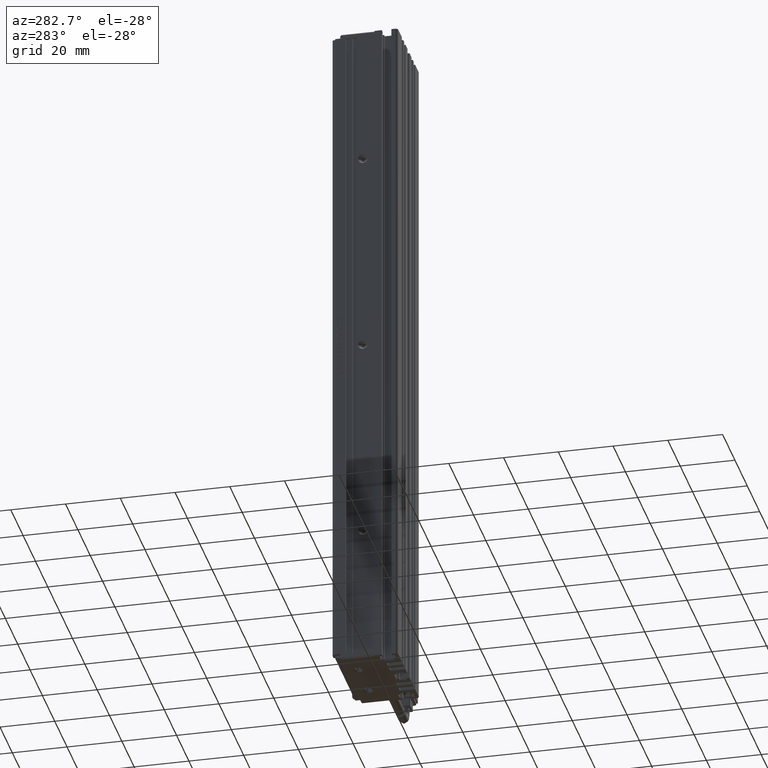
[diagram: clean part render]
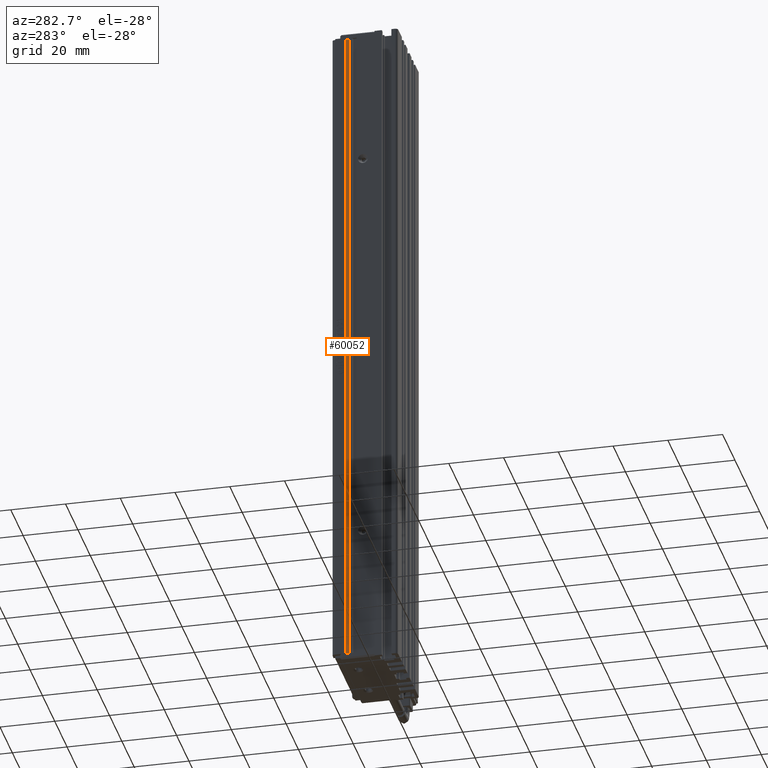
[diagram: same view with one face highlighted and labeled with its STEP entity id]
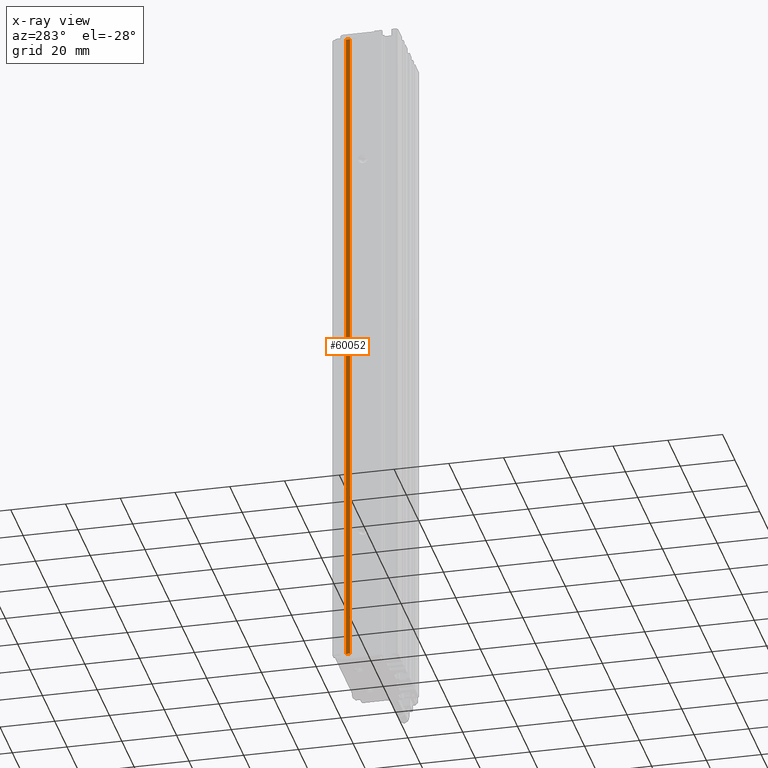
[diagram: x-ray of the same camera — body ghosted, the highlighted face saturated]
A machine part, auxiliary view. The second image highlights one B-rep face of the part: STEP entity #60052.
The next image is the same camera in x-ray: the body ghosted, the highlighted face saturated — about 0% of this face is hidden behind the body in this view.
In plain terms, the highlighted planar face has unit normal (1, 0, 0).
Its self-contained STEP definition (entity closure, byte-faithful):
#3408 = CARTESIAN_POINT ( 'NONE',  ( 23.92537974683542900, 28.49073232304836600, 8.999999999999994700 ) ) ;
#3861 = VECTOR ( 'NONE', #65448, 1000.000000000000000 ) ;
#6806 = DIRECTION ( 'NONE',  ( 1.000000000000000000, 7.380418287155808400E-032, 0.0000000000000000000 ) ) ;
#11392 = VERTEX_POINT ( 'NONE', #77975 ) ;
#15983 = DIRECTION ( 'NONE',  ( -0.0000000000000000000, -0.0000000000000000000, -1.000000000000000000 ) ) ;
#19694 = EDGE_CURVE ( 'NONE', #61553, #22620, #79491, .T. ) ;
#20488 = CARTESIAN_POINT ( 'NONE',  ( 23.92537974683542900, 28.49073232304836600, 10.99999999999999600 ) ) ;
#22347 = AXIS2_PLACEMENT_3D ( 'NONE', #66803, #6806, #82134 ) ;
#22620 = VERTEX_POINT ( 'NONE', #95303 ) ;
#25813 = VERTEX_POINT ( 'NONE', #3408 ) ;
#43237 = VECTOR ( 'NONE', #59372, 1000.000000000000000 ) ;
#49688 = EDGE_CURVE ( 'NONE', #25813, #61553, #64892, .T. ) ;
#50922 = DIRECTION ( 'NONE',  ( -0.0000000000000000000, 0.0000000000000000000, -1.000000000000000000 ) ) ;
#52737 = VECTOR ( 'NONE', #15983, 1000.000000000000000 ) ;
#53374 = ORIENTED_EDGE ( 'NONE', *, *, #96174, .F. ) ;
#57608 = FACE_OUTER_BOUND ( 'NONE', #73266, .T. ) ;
#59372 = DIRECTION ( 'NONE',  ( -7.380418287155808400E-032, 1.000000000000000000, 0.0000000000000000000 ) ) ;
#60052 = ADVANCED_FACE ( 'NONE', ( #57608 ), #80206, .F. ) ;
#61070 = CARTESIAN_POINT ( 'NONE',  ( 23.92537974683542900, 29.99073232304837000, 10.99999999999999600 ) ) ;
#61553 = VERTEX_POINT ( 'NONE', #95387 ) ;
#62174 = ORIENTED_EDGE ( 'NONE', *, *, #19694, .F. ) ;
#64892 = LINE ( 'NONE', #20488, #67208 ) ;
#65448 = DIRECTION ( 'NONE',  ( 7.380418287155808400E-032, -1.000000000000000000, -0.0000000000000000000 ) ) ;
#66008 = ORIENTED_EDGE ( 'NONE', *, *, #49688, .F. ) ;
#66803 = CARTESIAN_POINT ( 'NONE',  ( 23.92537974683542900, 7.083797468354435800, 10.99999999999999600 ) ) ;
#67208 = VECTOR ( 'NONE', #50922, 1000.000000000000000 ) ;
#69440 = EDGE_CURVE ( 'NONE', #11392, #22620, #72539, .T. ) ;
#72539 = LINE ( 'NONE', #61070, #52737 ) ;
#73266 = EDGE_LOOP ( 'NONE', ( #53374, #74314, #62174, #66008 ) ) ;
#74314 = ORIENTED_EDGE ( 'NONE', *, *, #69440, .T. ) ;
#77975 = CARTESIAN_POINT ( 'NONE',  ( 23.92537974683542900, 29.99073232304837000, 8.999999999999994700 ) ) ;
#78970 = CARTESIAN_POINT ( 'NONE',  ( 23.92537974683542900, 7.083797468354435800, -239.0000000000000000 ) ) ;
#79491 = LINE ( 'NONE', #78970, #43237 ) ;
#80119 = CARTESIAN_POINT ( 'NONE',  ( 23.92537974683542900, 7.083797468354435800, 8.999999999999994700 ) ) ;
#80206 = PLANE ( 'NONE',  #22347 ) ;
#82134 = DIRECTION ( 'NONE',  ( -7.380418287155808400E-032, 1.000000000000000000, 0.0000000000000000000 ) ) ;
#84435 = LINE ( 'NONE', #80119, #3861 ) ;
#95303 = CARTESIAN_POINT ( 'NONE',  ( 23.92537974683542900, 29.99073232304837000, -239.0000000000000000 ) ) ;
#95387 = CARTESIAN_POINT ( 'NONE',  ( 23.92537974683542900, 28.49073232304836600, -239.0000000000000000 ) ) ;
#96174 = EDGE_CURVE ( 'NONE', #11392, #25813, #84435, .T. ) ;